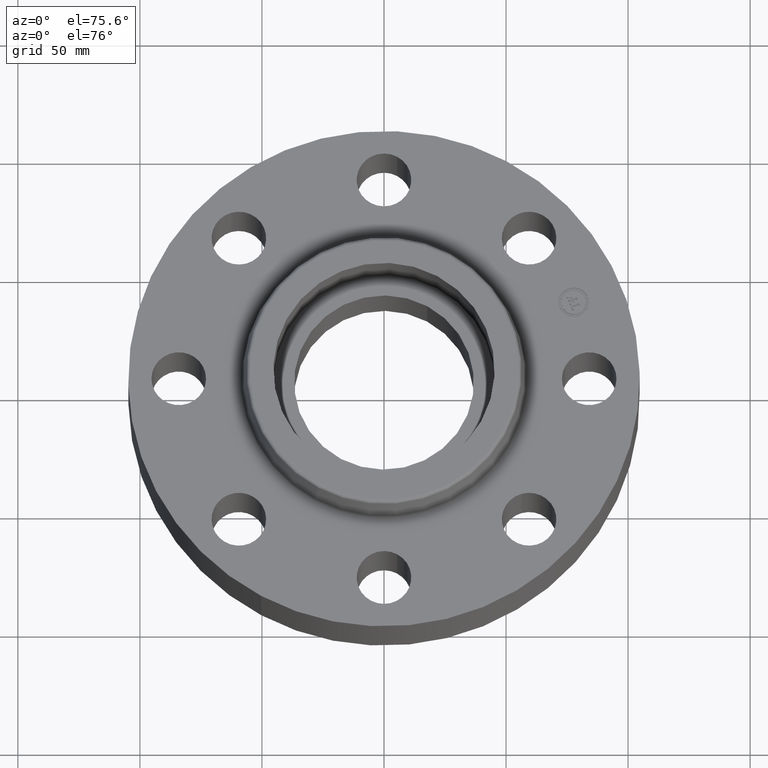
[diagram: clean part render]
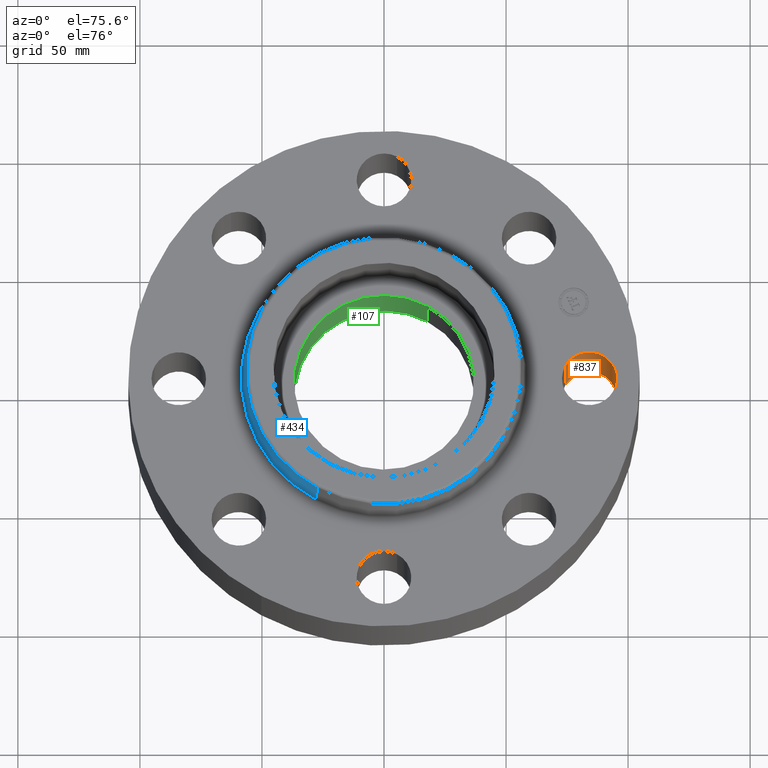
[diagram: same view with three faces highlighted in distinct colors, each labeled with its STEP entity id]
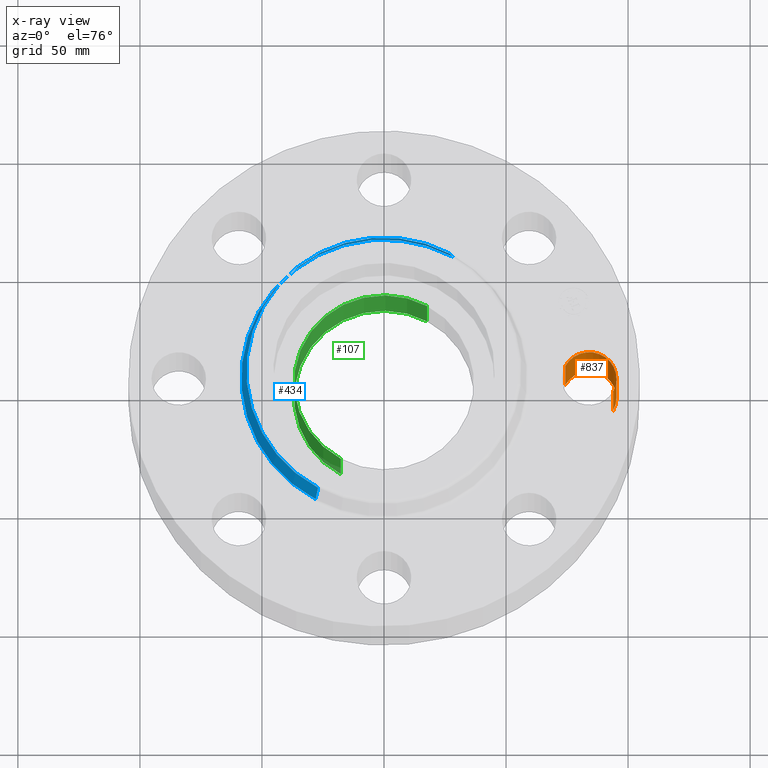
[diagram: x-ray of the same camera — body ghosted, the three highlighted faces saturated]
A machine part, auxiliary view with three faces highlighted in distinct colors.
The next image is the same camera in x-ray (body ghosted, the three faces saturated) — at least one of them is partly hidden behind the body in this view.
Their STEP definitions:

[orange] entity #837 — the highlighted cylindrical surface (edge-blend (fillet) strip) has radius 11.176 mm, axis along (0, -0, -1).
#154=AXIS2_PLACEMENT_3D('Circle Axis2P3D',#152,#153,$) ;
#810=AXIS2_PLACEMENT_3D('Cylinder Axis2P3D',#807,#808,#809) ;
#828=AXIS2_PLACEMENT_3D('Circle Axis2P3D',#826,#827,$) ;
#147=CARTESIAN_POINT('Vertex',(3.69613632725,-0.210947236987,0.)) ;
#149=CARTESIAN_POINT('Vertex',(2.92386367278,0.210947236987,0.)) ;
#152=CARTESIAN_POINT('Axis2P3D Location',(3.31000000001,0.,0.)) ;
#807=CARTESIAN_POINT('Axis2P3D Location',(3.31000000001,0.,1.24606299213)) ;
#812=CARTESIAN_POINT('Line Origine',(2.92386367278,0.210947236987,0.625000000003)) ;
#816=CARTESIAN_POINT('Vertex',(2.92386367278,0.210947236987,1.25000000001)) ;
#819=CARTESIAN_POINT('Line Origine',(3.69613632725,-0.210947236987,0.625000000003)) ;
#823=CARTESIAN_POINT('Vertex',(3.69613632725,-0.210947236987,1.25000000001)) ;
#826=CARTESIAN_POINT('Axis2P3D Location',(3.31000000001,0.,1.25000000001)) ;
#153=DIRECTION('Axis2P3D Direction',(0.,0.,-0.0393700787402)) ;
#808=DIRECTION('Axis2P3D Direction',(0.,-0.,-0.0393700787402)) ;
#809=DIRECTION('Axis2P3D XDirection',(0.0345504945626,-0.0188750212049,0.)) ;
#813=DIRECTION('Vector Direction',(0.,0.,-0.0393700787402)) ;
#820=DIRECTION('Vector Direction',(0.,0.,-0.0393700787402)) ;
#827=DIRECTION('Axis2P3D Direction',(0.,-0.,-0.0393700787402)) ;
#814=VECTOR('Line Direction',#813,0.0393700787402) ;
#821=VECTOR('Line Direction',#820,0.0393700787402) ;
#832=ORIENTED_EDGE('',*,*,#818,.F.) ;
#833=ORIENTED_EDGE('',*,*,#156,.T.) ;
#834=ORIENTED_EDGE('',*,*,#825,.T.) ;
#835=ORIENTED_EDGE('',*,*,#830,.F.) ;
#837=ADVANCED_FACE('PartBody',(#836),#811,.F.) ;
#155=CIRCLE('generated circle',#154,0.440000000002) ;
#829=CIRCLE('generated circle',#828,0.440000000002) ;
#811=CYLINDRICAL_SURFACE('generated cylinder',#810,0.440000000002) ;
#156=EDGE_CURVE('',#150,#148,#155,.T.) ;
#818=EDGE_CURVE('',#150,#817,#815,.F.) ;
#825=EDGE_CURVE('',#148,#824,#822,.F.) ;
#830=EDGE_CURVE('',#817,#824,#829,.T.) ;
#831=EDGE_LOOP('',(#832,#833,#834,#835)) ;
#836=FACE_OUTER_BOUND('',#831,.T.) ;
#815=LINE('Line',#812,#814) ;
#822=LINE('Line',#819,#821) ;
#148=VERTEX_POINT('',#147) ;
#150=VERTEX_POINT('',#149) ;
#817=VERTEX_POINT('',#816) ;
#824=VERTEX_POINT('',#823) ;

[blue] entity #434 — the highlighted conical surface has half-angle 10 deg.
#382=AXIS2_PLACEMENT_3D('Circle Axis2P3D',#380,#381,$) ;
#395=AXIS2_PLACEMENT_3D('Cone Axis2P3D',#392,#393,#394) ;
#425=AXIS2_PLACEMENT_3D('Circle Axis2P3D',#423,#424,$) ;
#353=CARTESIAN_POINT('Vertex',(1.10328162249,2.01954346356,1.29958110935)) ;
#360=CARTESIAN_POINT('Vertex',(-1.10328162249,-2.01954346356,1.29958110935)) ;
#380=CARTESIAN_POINT('Axis2P3D Location',(0.,0.,1.29958110935)) ;
#392=CARTESIAN_POINT('Axis2P3D Location',(0.,0.,1.76041889067)) ;
#397=CARTESIAN_POINT('Line Origine',(1.08380301002,1.98388810261,1.53000000001)) ;
#401=CARTESIAN_POINT('Vertex',(1.06432439756,1.94823274165,1.76041889067)) ;
#408=CARTESIAN_POINT('Vertex',(-1.06432439756,-1.94823274165,1.76041889067)) ;
#411=CARTESIAN_POINT('Line Origine',(-1.08380301002,-1.98388810261,1.53000000001)) ;
#423=CARTESIAN_POINT('Axis2P3D Location',(0.,0.,1.76041889067)) ;
#381=DIRECTION('Axis2P3D Direction',(0.,0.,-0.0393700787402)) ;
#393=DIRECTION('Axis2P3D Direction',(0.,0.,-0.0393700787402)) ;
#394=DIRECTION('Axis2P3D XDirection',(-0.0188750212049,-0.0345504945626,0.)) ;
#398=DIRECTION('Vector Direction',(0.00327761303565,0.00599963041829,-0.03877195878)) ;
#412=DIRECTION('Vector Direction',(-0.00327761303565,-0.00599963041829,-0.03877195878)) ;
#424=DIRECTION('Axis2P3D Direction',(0.,0.,-0.0393700787402)) ;
#399=VECTOR('Line Direction',#398,0.0393700787402) ;
#413=VECTOR('Line Direction',#412,0.0393700787402) ;
#429=ORIENTED_EDGE('',*,*,#384,.F.) ;
#430=ORIENTED_EDGE('',*,*,#415,.T.) ;
#431=ORIENTED_EDGE('',*,*,#427,.T.) ;
#432=ORIENTED_EDGE('',*,*,#403,.F.) ;
#434=ADVANCED_FACE('PartBody',(#433),#396,.T.) ;
#383=CIRCLE('generated circle',#382,2.3012575127) ;
#426=CIRCLE('generated circle',#425,2.21999937812) ;
#396=CONICAL_SURFACE('Cone',#395,2.21999937812,0.174532925199) ;
#384=EDGE_CURVE('',#361,#354,#383,.T.) ;
#403=EDGE_CURVE('',#354,#402,#400,.F.) ;
#415=EDGE_CURVE('',#361,#409,#414,.F.) ;
#427=EDGE_CURVE('',#409,#402,#426,.T.) ;
#428=EDGE_LOOP('',(#429,#430,#431,#432)) ;
#433=FACE_OUTER_BOUND('',#428,.T.) ;
#400=LINE('Line',#397,#399) ;
#414=LINE('Line',#411,#413) ;
#354=VERTEX_POINT('',#353) ;
#361=VERTEX_POINT('',#360) ;
#402=VERTEX_POINT('',#401) ;
#409=VERTEX_POINT('',#408) ;

[green] entity #107 — the highlighted cylindrical surface (partial cylindrical patch) has radius 36.83 mm, axis along (0, 0, -1).
#69=AXIS2_PLACEMENT_3D('Circle Axis2P3D',#67,#68,$) ;
#80=AXIS2_PLACEMENT_3D('Cylinder Axis2P3D',#77,#78,#79) ;
#91=AXIS2_PLACEMENT_3D('Circle Axis2P3D',#89,#90,$) ;
#62=CARTESIAN_POINT('Vertex',(0.695167030979,1.27249471475,1.)) ;
#64=CARTESIAN_POINT('Vertex',(-0.695167030979,-1.27249471475,1.)) ;
#67=CARTESIAN_POINT('Axis2P3D Location',(4.19611851827E-016,1.39870617276E-016,1.)) ;
#77=CARTESIAN_POINT('Axis2P3D Location',(0.,0.,0.905000000004)) ;
#82=CARTESIAN_POINT('Line Origine',(-0.695167030979,-1.27249471475,0.500000000002)) ;
#86=CARTESIAN_POINT('Vertex',(-0.695167030979,-1.27249471475,-5.87456592558E-015)) ;
#89=CARTESIAN_POINT('Axis2P3D Location',(0.,0.,-6.15430716013E-015)) ;
#93=CARTESIAN_POINT('Vertex',(0.695167030979,1.27249471475,-5.87456592558E-015)) ;
#96=CARTESIAN_POINT('Line Origine',(0.695167030979,1.27249471475,0.500000000002)) ;
#68=DIRECTION('Axis2P3D Direction',(0.,0.,-0.0393700787402)) ;
#78=DIRECTION('Axis2P3D Direction',(0.,0.,-0.0393700787402)) ;
#79=DIRECTION('Axis2P3D XDirection',(0.0188750212049,0.0345504945626,0.)) ;
#83=DIRECTION('Vector Direction',(0.,0.,-0.0393700787402)) ;
#90=DIRECTION('Axis2P3D Direction',(0.,0.,-0.0393700787402)) ;
#97=DIRECTION('Vector Direction',(0.,0.,-0.0393700787402)) ;
#84=VECTOR('Line Direction',#83,0.0393700787402) ;
#98=VECTOR('Line Direction',#97,0.0393700787402) ;
#102=ORIENTED_EDGE('',*,*,#88,.T.) ;
#103=ORIENTED_EDGE('',*,*,#95,.T.) ;
#104=ORIENTED_EDGE('',*,*,#100,.F.) ;
#105=ORIENTED_EDGE('',*,*,#71,.F.) ;
#107=ADVANCED_FACE('PartBody',(#106),#81,.F.) ;
#70=CIRCLE('generated circle',#69,1.45000000001) ;
#92=CIRCLE('generated circle',#91,1.45000000001) ;
#81=CYLINDRICAL_SURFACE('generated cylinder',#80,1.45000000001) ;
#71=EDGE_CURVE('',#65,#63,#70,.T.) ;
#88=EDGE_CURVE('',#65,#87,#85,.T.) ;
#95=EDGE_CURVE('',#87,#94,#92,.T.) ;
#100=EDGE_CURVE('',#63,#94,#99,.T.) ;
#101=EDGE_LOOP('',(#102,#103,#104,#105)) ;
#106=FACE_OUTER_BOUND('',#101,.T.) ;
#85=LINE('Line',#82,#84) ;
#99=LINE('Line',#96,#98) ;
#63=VERTEX_POINT('',#62) ;
#65=VERTEX_POINT('',#64) ;
#87=VERTEX_POINT('',#86) ;
#94=VERTEX_POINT('',#93) ;